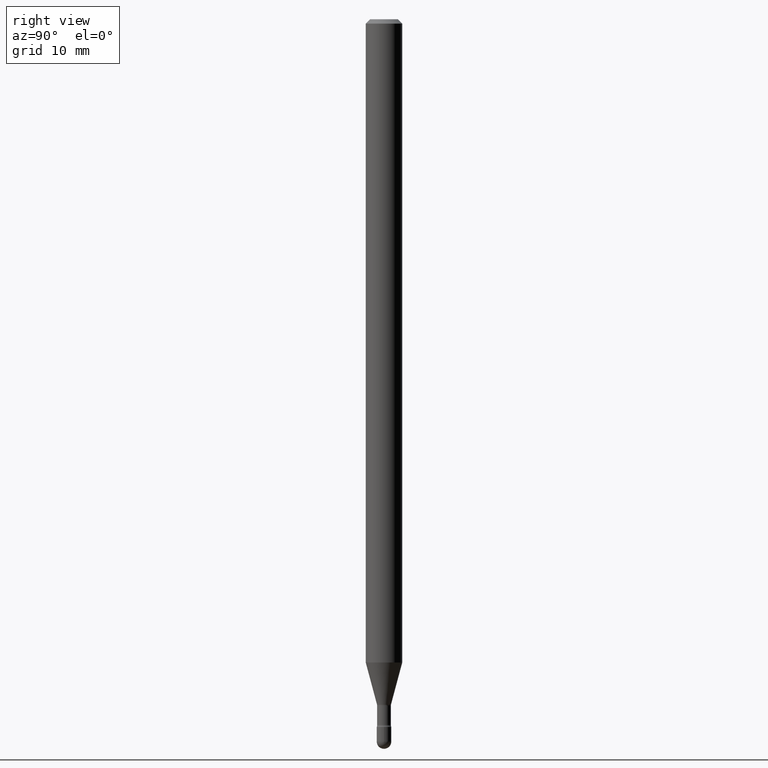
[diagram: clean part render]
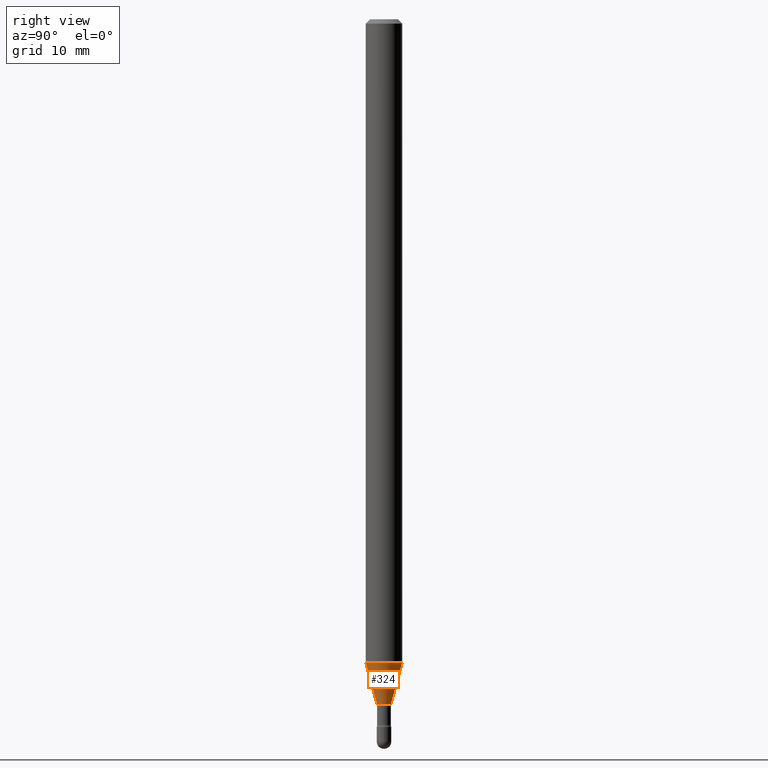
[diagram: same view with one face highlighted and labeled with its STEP entity id]
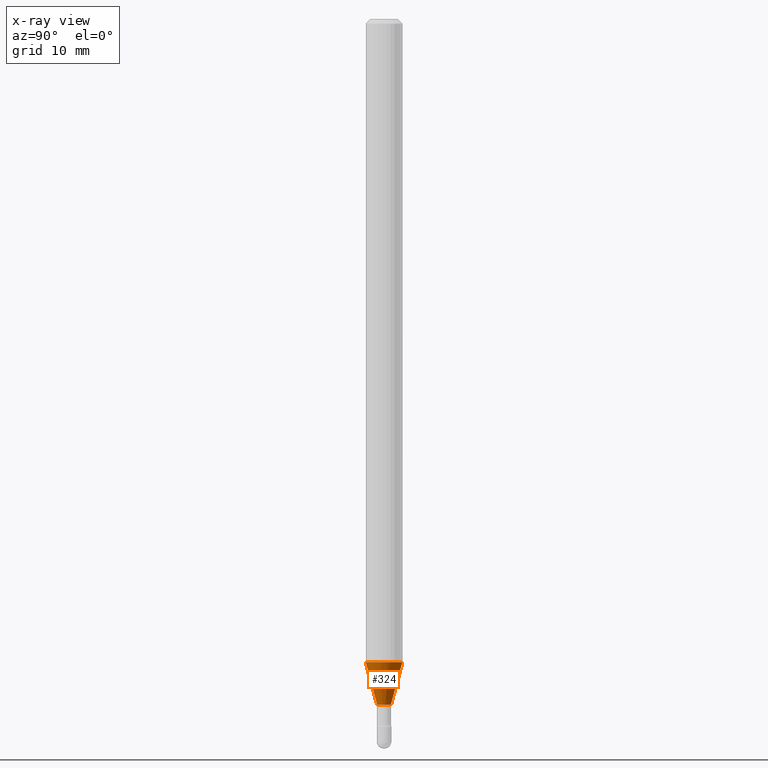
[diagram: x-ray of the same camera — body ghosted, the highlighted face saturated]
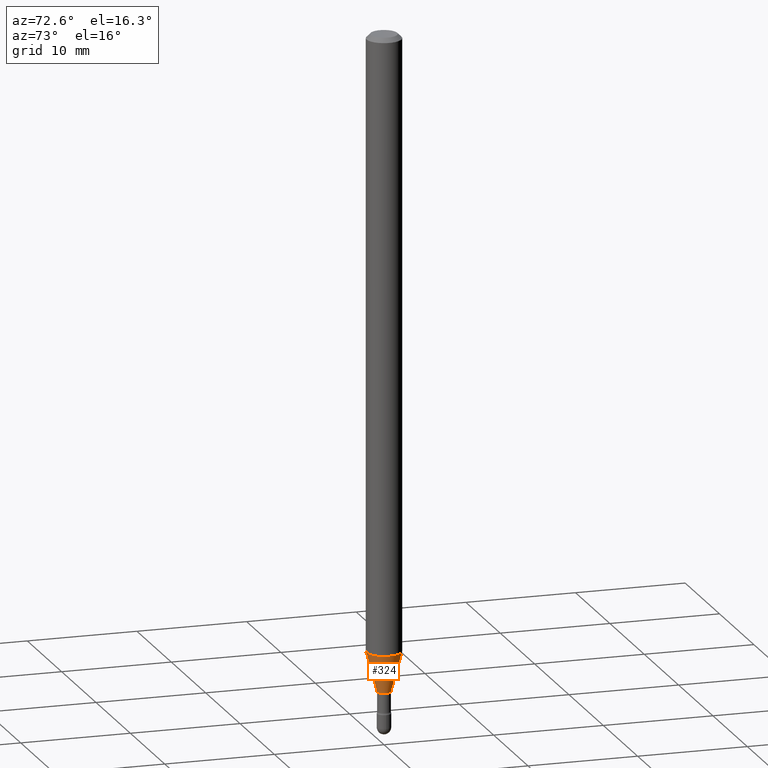
[diagram: same view with one face highlighted and labeled with its STEP entity id]
A machine part, right view. The second image highlights one B-rep face of the part: STEP entity #324.
The next image is the same camera in x-ray: the body ghosted, the highlighted face saturated — about 0% of this face is hidden behind the body in this view.
A second angle (auxiliary view) of the same face is appended — the face is thin or edge-on in the first view.
In plain terms, the highlighted conical surface has half-angle 15 deg.
Its self-contained STEP definition (entity closure, byte-faithful):
#2 = VERTEX_POINT ( 'NONE', #441 ) ;
#5 = CARTESIAN_POINT ( 'NONE',  ( -1.676687031750163775E-16, -0.02401111260567218020, -2.348092501787273356 ) ) ;
#9 = DIRECTION ( 'NONE',  ( -2.445458152833989696E-29, 3.491496595048338889E-15, 1.000000000000000000 ) ) ;
#42 = EDGE_CURVE ( 'NONE', #532, #521, #501, .T. ) ;
#49 = ORIENTED_EDGE ( 'NONE', *, *, #555, .T. ) ;
#50 = DIRECTION ( 'NONE',  ( -1.807323732225330928E-15, -0.2588190451025182970, 0.9659258262890689783 ) ) ;
#53 = LINE ( 'NONE', #5, #159 ) ;
#57 = AXIS2_PLACEMENT_3D ( 'NONE', #350, #9, #269 ) ;
#59 = ORIENTED_EDGE ( 'NONE', *, *, #287, .F. ) ;
#68 = DIRECTION ( 'NONE',  ( -2.445458152833989696E-29, 3.491496595048338889E-15, 1.000000000000000000 ) ) ;
#96 = CIRCLE ( 'NONE', #57, 0.06250000000000000000 ) ;
#108 = AXIS2_PLACEMENT_3D ( 'NONE', #230, #527, #303 ) ;
#159 = VECTOR ( 'NONE', #50, 39.37007874015748143 ) ;
#165 = ORIENTED_EDGE ( 'NONE', *, *, #228, .F. ) ;
#177 = DIRECTION ( 'NONE',  ( 1.839019923739601104E-15, 0.2588190451025250693, 0.9659258262890670910 ) ) ;
#228 = EDGE_CURVE ( 'NONE', #403, #2, #53, .T. ) ;
#230 = CARTESIAN_POINT ( 'NONE',  ( 5.742161952104046724E-29, -8.198356974848799736E-15, -2.348092501787273356 ) ) ;
#269 = DIRECTION ( 'NONE',  ( -6.982962677686265922E-15, -1.000000000000000000, 4.370956789862821150E-15 ) ) ;
#272 = EDGE_LOOP ( 'NONE', ( #49, #516, #59, #165 ) ) ;
#287 = EDGE_CURVE ( 'NONE', #2, #521, #96, .T. ) ;
#296 = CARTESIAN_POINT ( 'NONE',  ( 1.706092163947804984E-16, 0.02401111260565578012, -2.348092501787273356 ) ) ;
#298 = CIRCLE ( 'NONE', #382, 0.02401111260566398189 ) ;
#303 = DIRECTION ( 'NONE',  ( -6.982962677686265133E-15, -1.000000000000000000, 0.000000000000000000 ) ) ;
#324 = ADVANCED_FACE ( 'NONE', ( #479 ), #360, .T. ) ;
#333 = CARTESIAN_POINT ( 'NONE',  ( -1.676687031750163775E-16, -0.02401111260567218020, -2.348092501787273356 ) ) ;
#350 = CARTESIAN_POINT ( 'NONE',  ( 5.390890270267638833E-29, -7.696829733563806270E-15, -2.204450018504814590 ) ) ;
#360 = CONICAL_SURFACE ( 'NONE', #108, 0.02401111260566398189, 0.2617993877991502960 ) ;
#362 = DIRECTION ( 'NONE',  ( -6.982962677686265133E-15, -1.000000000000000000, 0.000000000000000000 ) ) ;
#366 = CARTESIAN_POINT ( 'NONE',  ( 3.073492131224485758E-16, 0.02401111260565577665, -2.348092501787273356 ) ) ;
#382 = AXIS2_PLACEMENT_3D ( 'NONE', #548, #68, #362 ) ;
#403 = VERTEX_POINT ( 'NONE', #333 ) ;
#441 = CARTESIAN_POINT ( 'NONE',  ( -4.364351673553378297E-16, -0.06250000000000771605, -2.204450018504814146 ) ) ;
#479 = FACE_OUTER_BOUND ( 'NONE', #272, .T. ) ;
#501 = LINE ( 'NONE', #296, #506 ) ;
#506 = VECTOR ( 'NONE', #177, 39.37007874015748143 ) ;
#516 = ORIENTED_EDGE ( 'NONE', *, *, #42, .T. ) ;
#521 = VERTEX_POINT ( 'NONE', #536 ) ;
#527 = DIRECTION ( 'NONE',  ( -2.445458152833989696E-29, 3.491496595048338889E-15, 1.000000000000000000 ) ) ;
#532 = VERTEX_POINT ( 'NONE', #366 ) ;
#536 = CARTESIAN_POINT ( 'NONE',  ( 4.440892098501162587E-16, 0.06249999999999227007, -2.204450018504814590 ) ) ;
#548 = CARTESIAN_POINT ( 'NONE',  ( 5.742161952104046724E-29, -8.198356974848799736E-15, -2.348092501787273356 ) ) ;
#555 = EDGE_CURVE ( 'NONE', #403, #532, #298, .T. ) ;